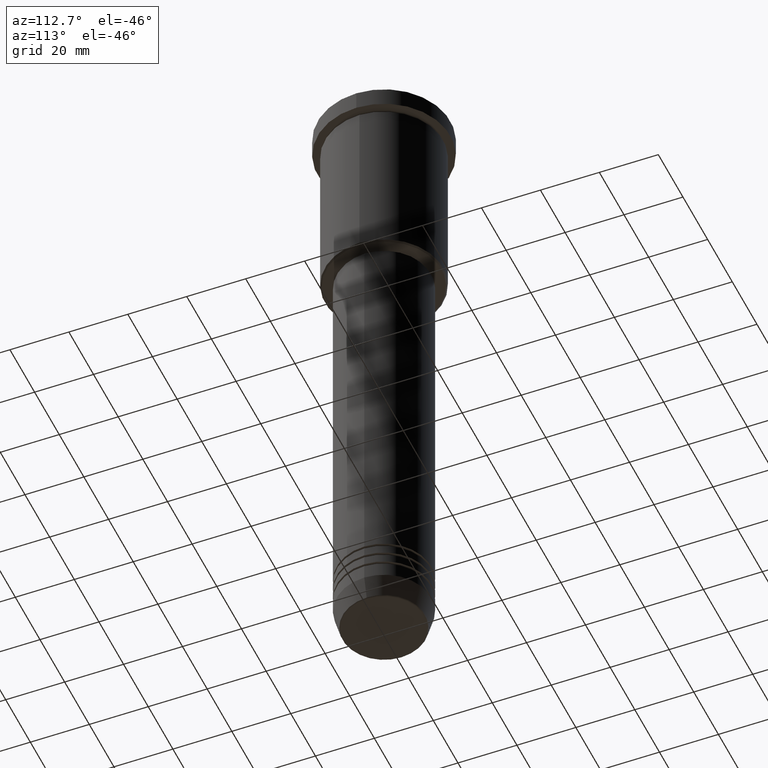
[diagram: clean part render]
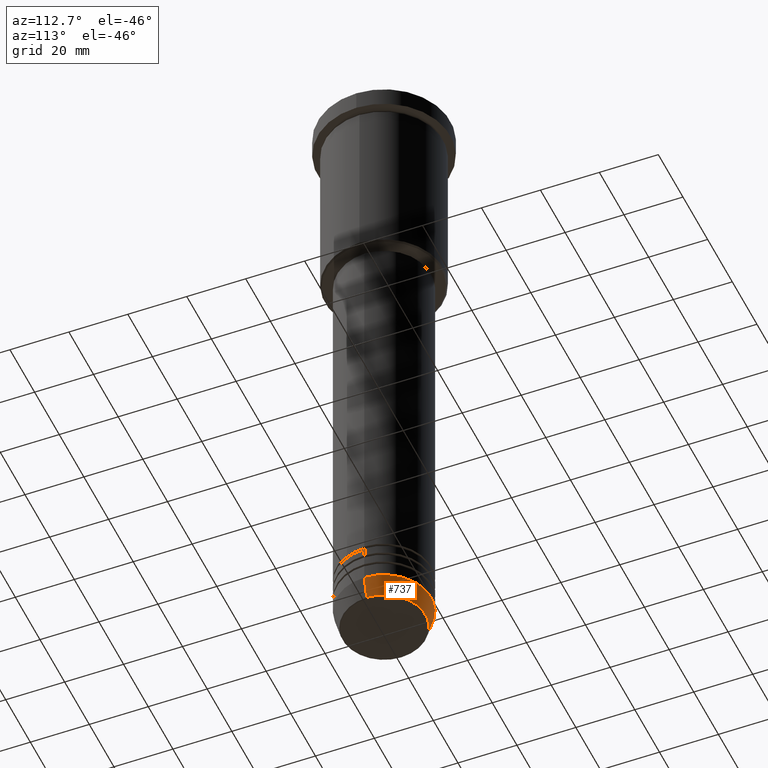
[diagram: same view with one face highlighted and labeled with its STEP entity id]
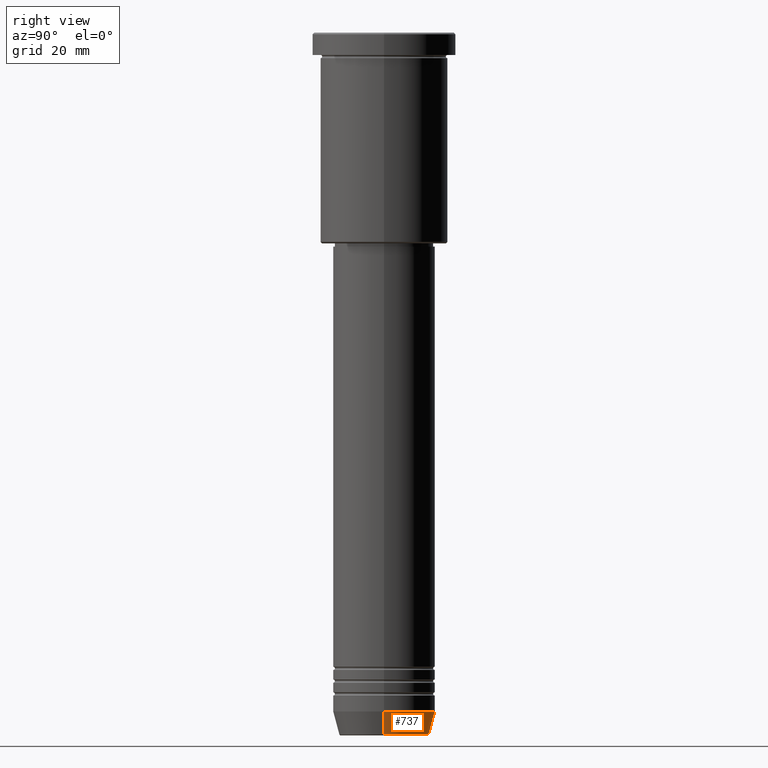
[diagram: same view with one face highlighted and labeled with its STEP entity id]
A machine part, auxiliary view. The second image highlights one B-rep face of the part: STEP entity #737.
A second angle (right view) of the same face is appended — the face is thin or edge-on in the first view.
In plain terms, the highlighted conical surface has half-angle 15 deg.
Its self-contained STEP definition (entity closure, byte-faithful):
#48 = LINE ( 'NONE', #326, #615 ) ;
#77 = CONICAL_SURFACE ( 'NONE', #759, 16.00000000000000000, 0.2617993877991500740 ) ;
#116 = DIRECTION ( 'NONE',  ( 1.000000000000000000, 0.000000000000000000, 0.000000000000000000 ) ) ;
#154 = CARTESIAN_POINT ( 'NONE',  ( -16.00000000000000000, 1.959434878635765131E-15, -212.5000000000000000 ) ) ;
#184 = CARTESIAN_POINT ( 'NONE',  ( 0.000000000000000000, 0.000000000000000000, -219.6294095225512137 ) ) ;
#242 = EDGE_CURVE ( 'NONE', #590, #662, #978, .T. ) ;
#253 = FACE_OUTER_BOUND ( 'NONE', #1064, .T. ) ;
#267 = DIRECTION ( 'NONE',  ( 1.000000000000000000, 0.000000000000000000, 0.000000000000000000 ) ) ;
#310 = CARTESIAN_POINT ( 'NONE',  ( 0.000000000000000000, 0.000000000000000000, -212.5000000000000000 ) ) ;
#326 = CARTESIAN_POINT ( 'NONE',  ( 16.00000000000000000, 0.000000000000000000, -212.5000000000000000 ) ) ;
#349 = CARTESIAN_POINT ( 'NONE',  ( 16.00000000000000000, 0.000000000000000000, -212.5000000000000000 ) ) ;
#375 = ORIENTED_EDGE ( 'NONE', *, *, #242, .T. ) ;
#385 = VERTEX_POINT ( 'NONE', #714 ) ;
#408 = DIRECTION ( 'NONE',  ( -0.2588190451025213501, 3.169619151431772337E-17, 0.9659258262890680902 ) ) ;
#478 = AXIS2_PLACEMENT_3D ( 'NONE', #184, #1111, #658 ) ;
#492 = EDGE_CURVE ( 'NONE', #1109, #662, #1030, .T. ) ;
#537 = VECTOR ( 'NONE', #408, 1000.000000000000000 ) ;
#563 = ORIENTED_EDGE ( 'NONE', *, *, #963, .T. ) ;
#590 = VERTEX_POINT ( 'NONE', #597 ) ;
#597 = CARTESIAN_POINT ( 'NONE',  ( -14.08968047592163941, 1.842461544110202058E-15, -219.6294095225512137 ) ) ;
#615 = VECTOR ( 'NONE', #957, 1000.000000000000000 ) ;
#649 = EDGE_CURVE ( 'NONE', #385, #1109, #48, .T. ) ;
#658 = DIRECTION ( 'NONE',  ( 1.000000000000000000, 0.000000000000000000, 0.000000000000000000 ) ) ;
#662 = VERTEX_POINT ( 'NONE', #694 ) ;
#694 = CARTESIAN_POINT ( 'NONE',  ( -16.00000000000000000, 1.959434878635765131E-15, -212.5000000000000000 ) ) ;
#714 = CARTESIAN_POINT ( 'NONE',  ( 14.08968047592163941, 0.000000000000000000, -219.6294095225512137 ) ) ;
#737 = ADVANCED_FACE ( 'NONE', ( #253 ), #77, .T. ) ;
#759 = AXIS2_PLACEMENT_3D ( 'NONE', #1088, #1075, #267 ) ;
#850 = DIRECTION ( 'NONE',  ( -0.000000000000000000, -0.000000000000000000, 1.000000000000000000 ) ) ;
#871 = CIRCLE ( 'NONE', #478, 14.08968047592163941 ) ;
#954 = AXIS2_PLACEMENT_3D ( 'NONE', #310, #850, #116 ) ;
#957 = DIRECTION ( 'NONE',  ( 0.2588190451025213501, 0.000000000000000000, 0.9659258262890680902 ) ) ;
#963 = EDGE_CURVE ( 'NONE', #385, #590, #871, .T. ) ;
#978 = LINE ( 'NONE', #154, #537 ) ;
#986 = ORIENTED_EDGE ( 'NONE', *, *, #492, .F. ) ;
#1030 = CIRCLE ( 'NONE', #954, 16.00000000000000000 ) ;
#1064 = EDGE_LOOP ( 'NONE', ( #563, #375, #986, #1070 ) ) ;
#1070 = ORIENTED_EDGE ( 'NONE', *, *, #649, .F. ) ;
#1075 = DIRECTION ( 'NONE',  ( -0.000000000000000000, -0.000000000000000000, 1.000000000000000000 ) ) ;
#1088 = CARTESIAN_POINT ( 'NONE',  ( 0.000000000000000000, 0.000000000000000000, -212.5000000000000000 ) ) ;
#1109 = VERTEX_POINT ( 'NONE', #349 ) ;
#1111 = DIRECTION ( 'NONE',  ( -0.000000000000000000, -0.000000000000000000, 1.000000000000000000 ) ) ;